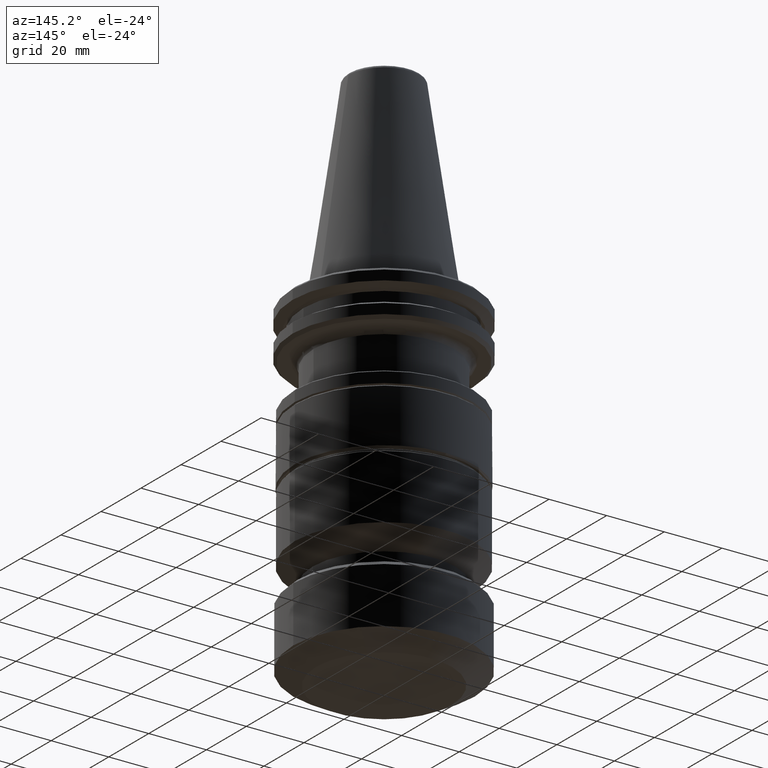
[diagram: clean part render]
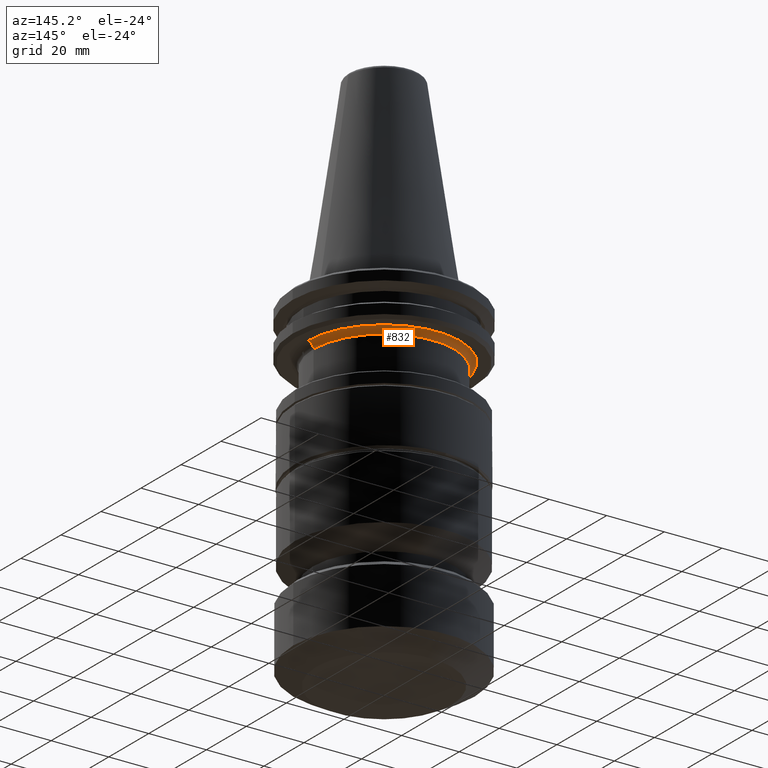
[diagram: same view with one face highlighted and labeled with its STEP entity id]
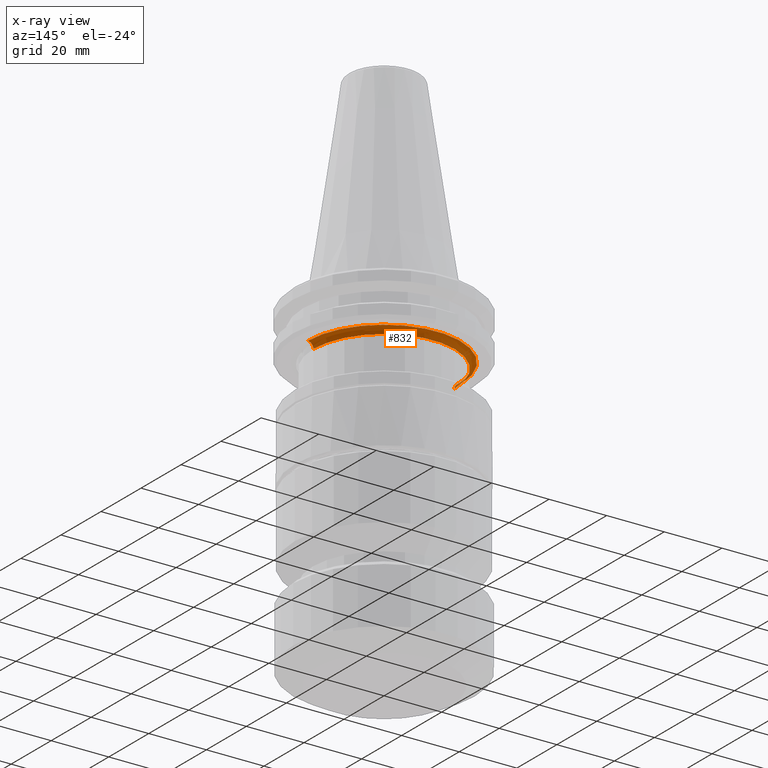
[diagram: x-ray of the same camera — body ghosted, the highlighted face saturated]
A machine part, auxiliary view. The second image highlights one B-rep face of the part: STEP entity #832.
The next image is the same camera in x-ray: the body ghosted, the highlighted face saturated — about 1% of this face is hidden behind the body in this view.
In plain terms, the highlighted face is a freeform B-spline surface patch.
Its self-contained STEP definition (entity closure, byte-faithful):
#11 = DIRECTION ( 'NONE',  ( 1.224646799147353200E-016, -1.000000000000000000, 0.0000000000000000000 ) ) ;
#74 =( BOUNDED_SURFACE ( )  B_SPLINE_SURFACE ( 3, 3, ( 
 ( #750, #717, #708, #707 ),
 ( #704, #701, #699, #696 ),
 ( #692, #690, #688, #687 ),
 ( #686, #685, #684, #680 ) ),
 .UNSPECIFIED., .F., .F., .T. ) 
 B_SPLINE_SURFACE_WITH_KNOTS ( ( 4, 4 ),
 ( 4, 4 ),
 ( 0.0000000000000000000, 1.000000000000000000 ),
 ( 0.0000000000000000000, 1.000000000000000000 ),
 .UNSPECIFIED. ) 
 GEOMETRIC_REPRESENTATION_ITEM ( )  RATIONAL_B_SPLINE_SURFACE ( (
 ( 1.000000000000000000, 0.3333333333333334300, 0.3333333333333334300, 1.000000000000000000),
 ( 0.8047378541243649400, 0.2682459513747884100, 0.2682459513747884100, 0.8047378541243649400),
 ( 0.8047378541243649400, 0.2682459513747884100, 0.2682459513747884100, 0.8047378541243649400),
 ( 1.000000000000000000, 0.3333333333333334300, 0.3333333333333334300, 1.000000000000000000) ) ) 
 REPRESENTATION_ITEM ( '' )  SURFACE ( )  );
#83 = EDGE_CURVE ( 'NONE', #617, #905, #1359, .T. ) ;
#108 = CARTESIAN_POINT ( 'NONE',  ( 24.50000000000000000, 0.0000000000000000000, -21.10000000000000900 ) ) ;
#110 = CARTESIAN_POINT ( 'NONE',  ( -26.50000000000000400, 0.0000000000000000000, -19.10000000000000500 ) ) ;
#111 = CARTESIAN_POINT ( 'NONE',  ( -26.50000000000000400, 1.735447729476592200, -19.10000000000017600 ) ) ;
#113 = CARTESIAN_POINT ( 'NONE',  ( -26.32955842497401400, 3.466705107187597600, -19.10000000000018300 ) ) ;
#115 = CARTESIAN_POINT ( 'NONE',  ( -25.65206143639720800, 6.873081959667204400, -19.10000000000017900 ) ) ;
#116 = CARTESIAN_POINT ( 'NONE',  ( -25.14732272704998600, 8.536735372245013700, -19.10000000000018300 ) ) ;
#117 = CARTESIAN_POINT ( 'NONE',  ( -23.81829249604821500, 11.74548654310474500, -19.10000000000017600 ) ) ;
#118 = CARTESIAN_POINT ( 'NONE',  ( -22.99868951952041100, 13.27870368443787200, -19.10000000000018300 ) ) ;
#120 = CARTESIAN_POINT ( 'NONE',  ( -21.06919993251449300, 16.16651866560105000, -19.10000000000017600 ) ) ;
#122 = CARTESIAN_POINT ( 'NONE',  ( -19.96622957151685500, 17.51037886088747400, -19.10000000000018300 ) ) ;
#125 = CARTESIAN_POINT ( 'NONE',  ( -17.51042983137016800, 19.96628054199954100, -19.10000000000017600 ) ) ;
#126 = CARTESIAN_POINT ( 'NONE',  ( -16.16647861835407000, 21.06913999755564900, -19.10000000000017900 ) ) ;
#129 = CARTESIAN_POINT ( 'NONE',  ( -13.27874373168484800, 22.99874945447925600, -19.10000000000017900 ) ) ;
#133 = CARTESIAN_POINT ( 'NONE',  ( -11.74545895812620300, 23.81822589987339700, -19.10000000000017900 ) ) ;
#135 = CARTESIAN_POINT ( 'NONE',  ( -8.536762957223567500, 25.14738932322480700, -19.10000000000017900 ) ) ;
#136 = CARTESIAN_POINT ( 'NONE',  ( -6.873067897001494200, 25.65199073829716500, -19.10000000000017600 ) ) ;
#138 = CARTESIAN_POINT ( 'NONE',  ( -3.466719169853307700, 26.32962912307405300, -19.10000000000017900 ) ) ;
#142 = CARTESIAN_POINT ( 'NONE',  ( -1.736548691118164500, 26.49996395842267900, -19.10000000000017600 ) ) ;
#144 = CARTESIAN_POINT ( 'NONE',  ( 1.736548691118165600, 26.50003604157732100, -19.10000000000017600 ) ) ;
#145 = CARTESIAN_POINT ( 'NONE',  ( 3.466705107190972700, 26.32955842497361200, -19.10000000000017900 ) ) ;
#147 = CARTESIAN_POINT ( 'NONE',  ( 6.873081959663822200, 25.65206143639761300, -19.10000000000017900 ) ) ;
#148 = CARTESIAN_POINT ( 'NONE',  ( 8.536735372258961600, 25.14732272704534900, -19.10000000000017600 ) ) ;
#150 = CARTESIAN_POINT ( 'NONE',  ( 11.74548654309079900, 23.81829249605285900, -19.10000000000017600 ) ) ;
#151 = CARTESIAN_POINT ( 'NONE',  ( 13.27870368442042100, 22.99868951953219200, -19.10000000000017600 ) ) ;
#153 = CARTESIAN_POINT ( 'NONE',  ( 16.16651866561849000, 21.06919993250272000, -19.10000000000017900 ) ) ;
#158 = CARTESIAN_POINT ( 'NONE',  ( 17.51037886087187100, 19.96622957153246600, -19.10000000000018600 ) ) ;
#160 = CARTESIAN_POINT ( 'NONE',  ( 19.96628054201515600, 17.51042983135456400, -19.10000000000018300 ) ) ;
#161 = CARTESIAN_POINT ( 'NONE',  ( 21.06913999752351800, 16.16647861840197100, -19.10000000000017900 ) ) ;
#164 = CARTESIAN_POINT ( 'NONE',  ( 22.99874945451139800, 13.27874373163694700, -19.10000000000017900 ) ) ;
#166 = CARTESIAN_POINT ( 'NONE',  ( 23.81822589988584600, 11.74545895809559500, -19.10000000000018300 ) ) ;
#167 = CARTESIAN_POINT ( 'NONE',  ( 25.14738932321236200, 8.536762957254177700, -19.10000000000017900 ) ) ;
#168 = CARTESIAN_POINT ( 'NONE',  ( 25.65199073829197500, 6.873067897008848300, -19.10000000000017200 ) ) ;
#171 = CARTESIAN_POINT ( 'NONE',  ( 26.32962912307924000, 3.466719169845968300, -19.10000000000017900 ) ) ;
#182 = CARTESIAN_POINT ( 'NONE',  ( 26.50000000000000400, 3.245314017740486200E-015, -19.10000000000017900 ) ) ;
#185 = CARTESIAN_POINT ( 'NONE',  ( 26.50000000000000400, 1.736182832676645500, -19.10000000000017900 ) ) ;
#239 = CARTESIAN_POINT ( 'NONE',  ( 26.50000000000000400, 3.245314017740486200E-015, -19.10000000000017900 ) ) ;
#526 = CARTESIAN_POINT ( 'NONE',  ( -24.50000000000000000, 3.000384657911015500E-015, -21.10000000000000900 ) ) ;
#617 = VERTEX_POINT ( 'NONE', #1638 ) ;
#680 = CARTESIAN_POINT ( 'NONE',  ( 24.50000000000000000, 3.000384657911015500E-015, -21.10000000000000900 ) ) ;
#684 = CARTESIAN_POINT ( 'NONE',  ( 24.49999999999999600, 48.99999999999999300, -21.10000000000000900 ) ) ;
#685 = CARTESIAN_POINT ( 'NONE',  ( -24.50000000000000400, 48.99999999999999300, -21.10000000000000900 ) ) ;
#686 = CARTESIAN_POINT ( 'NONE',  ( -24.50000000000000000, 0.0000000000000000000, -21.10000000000000900 ) ) ;
#687 = CARTESIAN_POINT ( 'NONE',  ( 24.50000000000000400, 3.000384657911015500E-015, -19.92842712474619700 ) ) ;
#688 = CARTESIAN_POINT ( 'NONE',  ( 24.49999999999999300, 48.99999999999998600, -19.92842712474619700 ) ) ;
#690 = CARTESIAN_POINT ( 'NONE',  ( -24.49999999999999600, 48.99999999999998600, -19.92842712474619700 ) ) ;
#692 = CARTESIAN_POINT ( 'NONE',  ( -24.50000000000000400, 0.0000000000000000000, -19.92842712474619700 ) ) ;
#696 = CARTESIAN_POINT ( 'NONE',  ( 25.32842712474619200, 3.101837720575742600E-015, -19.10000000000000500 ) ) ;
#699 = CARTESIAN_POINT ( 'NONE',  ( 25.32842712474618500, 50.65685424949236900, -19.10000000000000100 ) ) ;
#701 = CARTESIAN_POINT ( 'NONE',  ( -25.32842712474618800, 50.65685424949236900, -19.10000000000000100 ) ) ;
#704 = CARTESIAN_POINT ( 'NONE',  ( -25.32842712474619200, 0.0000000000000000000, -19.10000000000000500 ) ) ;
#707 = CARTESIAN_POINT ( 'NONE',  ( 26.50000000000000400, 3.245314017740486600E-015, -19.10000000000000500 ) ) ;
#708 = CARTESIAN_POINT ( 'NONE',  ( 26.49999999999999300, 52.99999999999998600, -19.10000000000000900 ) ) ;
#717 = CARTESIAN_POINT ( 'NONE',  ( -26.50000000000000400, 52.99999999999998600, -19.10000000000000900 ) ) ;
#750 = CARTESIAN_POINT ( 'NONE',  ( -26.50000000000000400, 0.0000000000000000000, -19.10000000000000500 ) ) ;
#787 = CARTESIAN_POINT ( 'NONE',  ( 26.50000000000000400, 3.245314017740486600E-015, -21.10000000000000900 ) ) ;
#816 = AXIS2_PLACEMENT_3D ( 'NONE', #1105, #1369, #1316 ) ;
#832 = ADVANCED_FACE ( 'NONE', ( #1476 ), #74, .F. ) ;
#905 = VERTEX_POINT ( 'NONE', #526 ) ;
#1039 = B_SPLINE_CURVE_WITH_KNOTS ( 'NONE', 3,
 ( #182, #185, #171, #168, #167, #166, #164, #161, #160, #158, #153, #151, #150, #148, #147, #145, #144, #142, #138, #136, #135, #133, #129, #126, #125, #122, #120, #118, #117, #116, #115, #113, #111, #110 ),
 .UNSPECIFIED., .F., .F.,
 ( 4, 2, 2, 2, 2, 2, 2, 2, 2, 2, 2, 2, 2, 2, 2, 2, 4 ),
 ( 0.0000000000000000000, 0.06249999999999991700, 0.1249999999999998300, 0.1874999999999997500, 0.2499999999999997200, 0.3124999999999996700, 0.3749999999999997200, 0.4374999999999997200, 0.4999999999999997800, 0.5624999999999997800, 0.6249999999999997800, 0.6874999999999998900, 0.7499999999999998900, 0.8124999999999998900, 0.8749999999999998900, 0.9375000000000000000, 1.000000000000000000 ),
 .UNSPECIFIED. ) ;
#1096 = ORIENTED_EDGE ( 'NONE', *, *, #1260, .F. ) ;
#1105 = CARTESIAN_POINT ( 'NONE',  ( -26.50000000000000400, 0.0000000000000000000, -21.10000000000000900 ) ) ;
#1142 = VERTEX_POINT ( 'NONE', #239 ) ;
#1177 = EDGE_CURVE ( 'NONE', #1142, #617, #1039, .T. ) ;
#1195 = VERTEX_POINT ( 'NONE', #108 ) ;
#1206 = DIRECTION ( 'NONE',  ( 1.000000000000000000, 1.224646799147353500E-016, 0.0000000000000000000 ) ) ;
#1260 = EDGE_CURVE ( 'NONE', #905, #1195, #1263, .T. ) ;
#1263 = CIRCLE ( 'NONE', #1338, 24.50000000000000000 ) ;
#1316 = DIRECTION ( 'NONE',  ( -1.000000000000000000, 0.0000000000000000000, 0.0000000000000000000 ) ) ;
#1338 = AXIS2_PLACEMENT_3D ( 'NONE', #1438, #1726, #1459 ) ;
#1359 = CIRCLE ( 'NONE', #816, 2.000000000000001800 ) ;
#1362 = EDGE_LOOP ( 'NONE', ( #1372, #1404, #1096, #1682 ) ) ;
#1369 = DIRECTION ( 'NONE',  ( 0.0000000000000000000, 1.000000000000000000, 0.0000000000000000000 ) ) ;
#1372 = ORIENTED_EDGE ( 'NONE', *, *, #1177, .F. ) ;
#1404 = ORIENTED_EDGE ( 'NONE', *, *, #1702, .T. ) ;
#1438 = CARTESIAN_POINT ( 'NONE',  ( 0.0000000000000000000, 0.0000000000000000000, -21.10000000000000900 ) ) ;
#1459 = DIRECTION ( 'NONE',  ( -1.000000000000000000, 0.0000000000000000000, 0.0000000000000000000 ) ) ;
#1476 = FACE_OUTER_BOUND ( 'NONE', #1362, .T. ) ;
#1638 = CARTESIAN_POINT ( 'NONE',  ( -26.50000000000000400, 0.0000000000000000000, -19.10000000000000500 ) ) ;
#1682 = ORIENTED_EDGE ( 'NONE', *, *, #83, .F. ) ;
#1702 = EDGE_CURVE ( 'NONE', #1142, #1195, #1776, .T. ) ;
#1726 = DIRECTION ( 'NONE',  ( 0.0000000000000000000, 0.0000000000000000000, -1.000000000000000000 ) ) ;
#1776 = CIRCLE ( 'NONE', #1918, 2.000000000000001800 ) ;
#1918 = AXIS2_PLACEMENT_3D ( 'NONE', #787, #11, #1206 ) ;